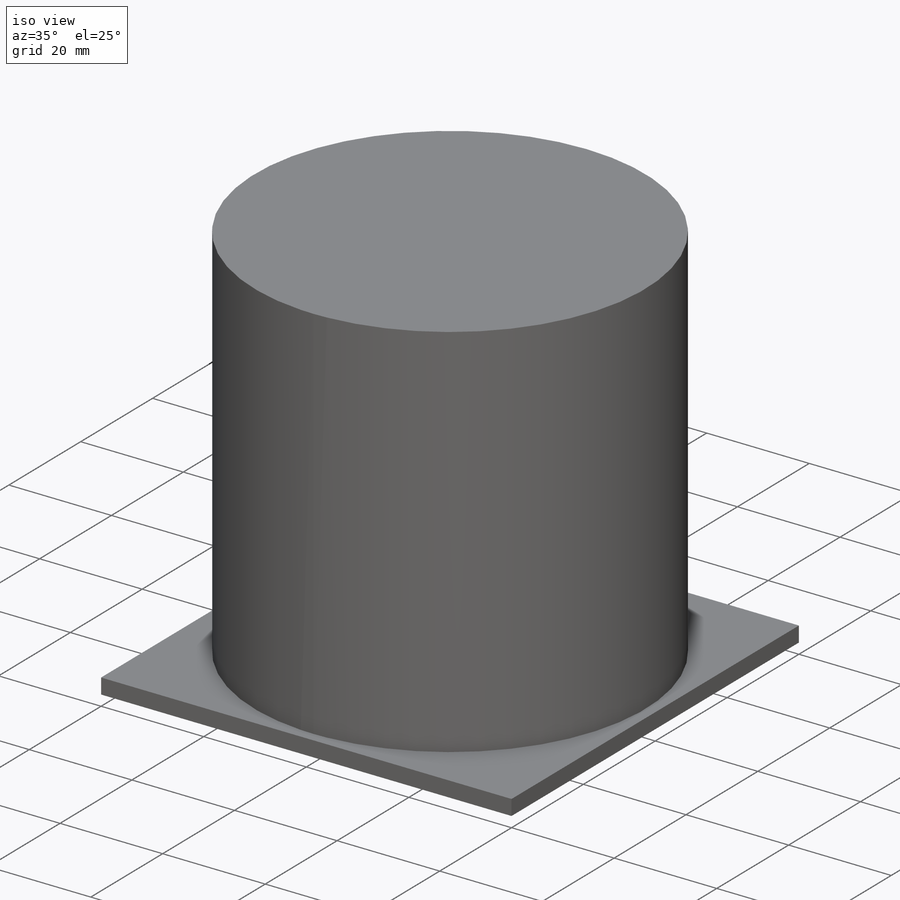
[diagram: iso view]
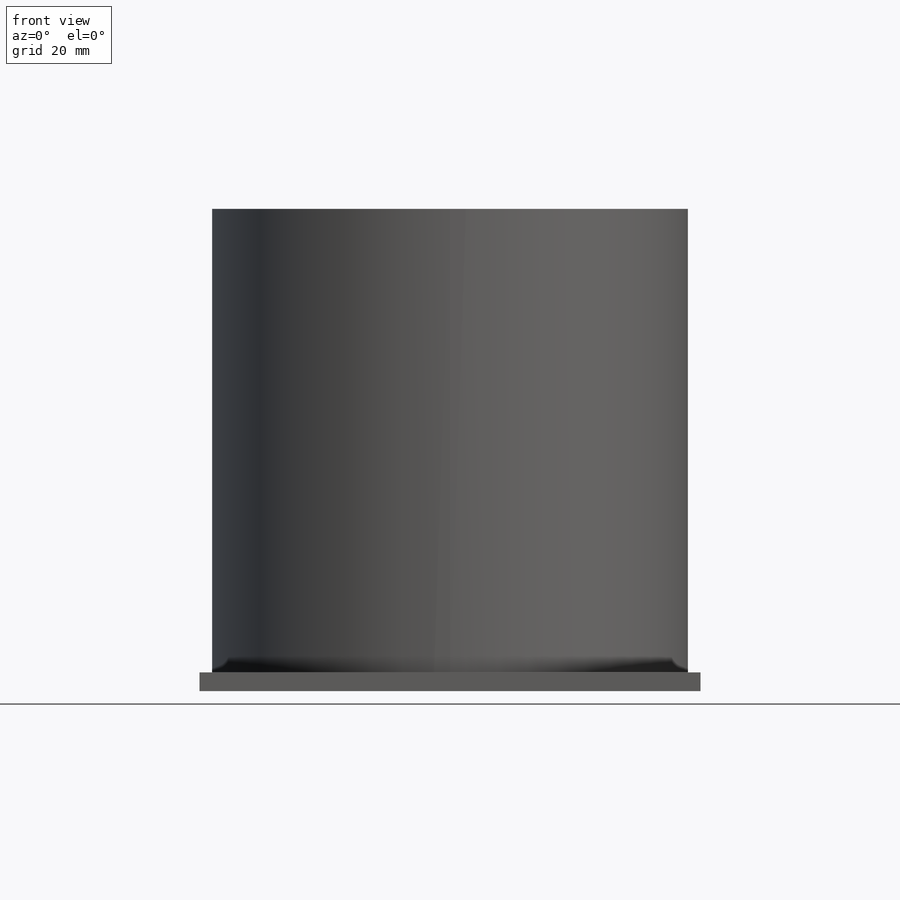
[diagram: front view]
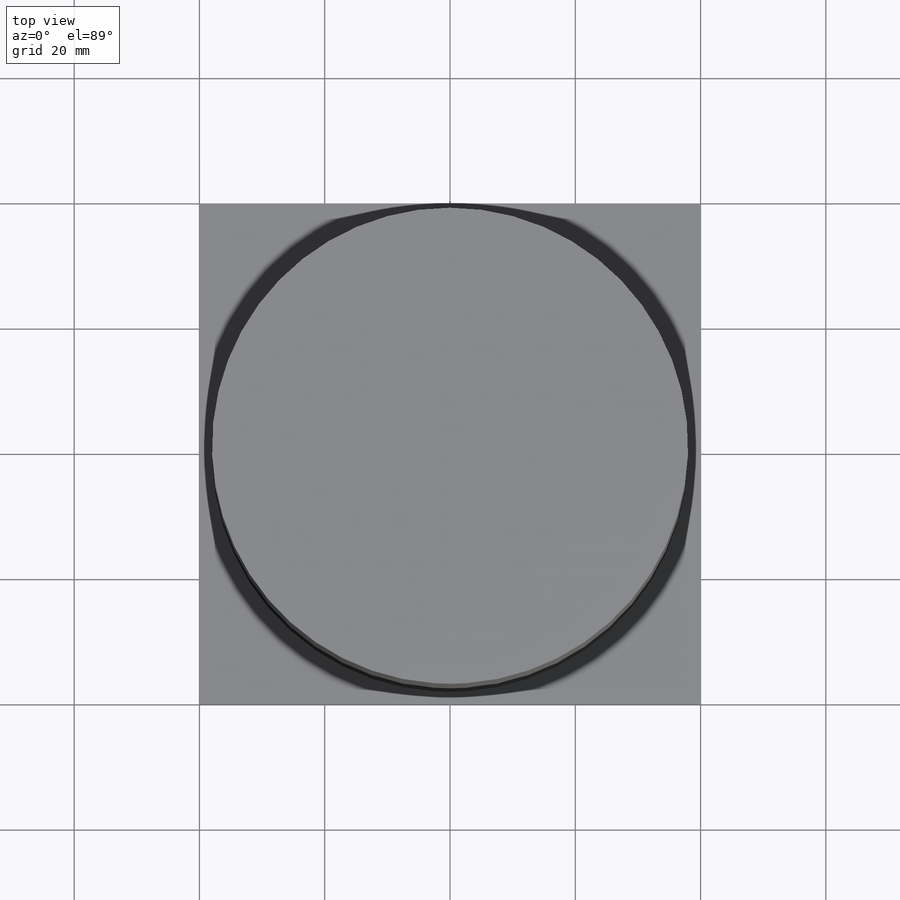
[diagram: top view]
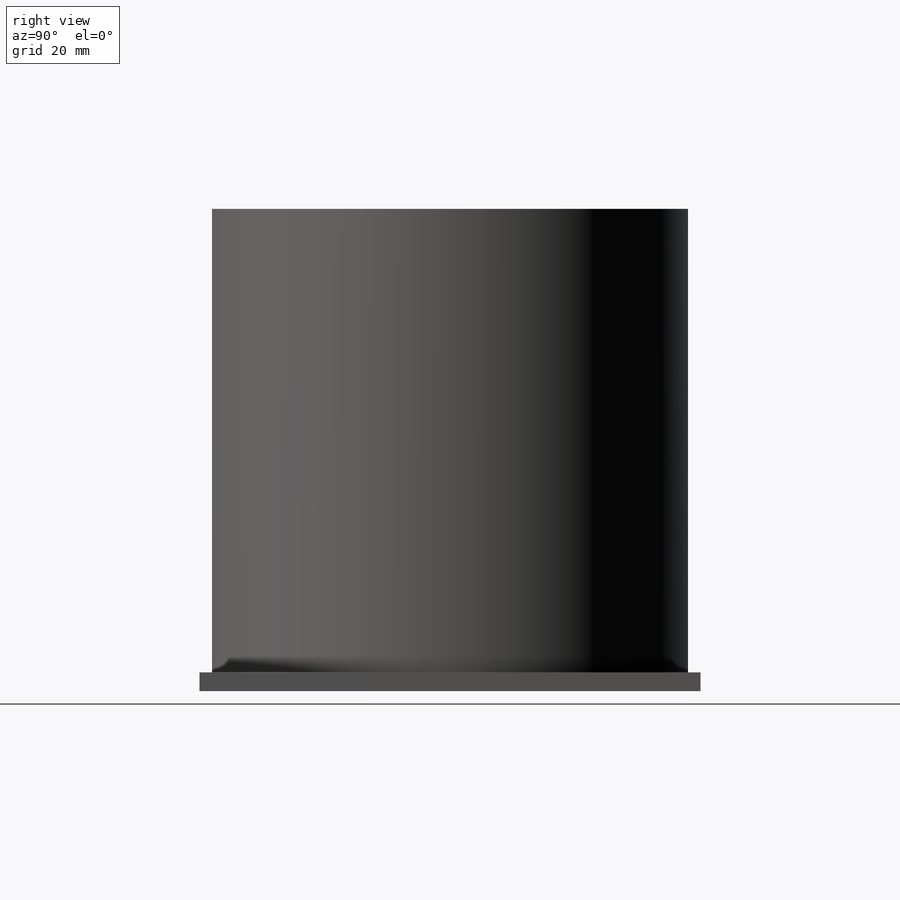
[diagram: right view]
SOLIDWORKS PART (.sldprt)
format: sldprt  version: not decoded by parser v0  size: 176,128 bytes
history: native  units: mm
features: sketch x3, material x1, extrude x1, revolve x1 (+11 scaffold rows collapsed)
feature tree (17):
  scaffold x11  (default folders/planes/origin — collapsed)
  material  "Material <not specified>"
  sketch  "Sketch1"  dims[c1.D1=80.0mm c1.D2=80.0mm c1.D3=80.0mm c2.D1=40.0mm c2.D2=80.0mm c2.D3=80.0mm]
  extrude  "Boss-Extrude1"  Depth=3mm
  sketch  "Sketch3"  dims[c1.D3=76.0mm c1.D1=40.0mm c1.D2=40.0mm c1.D4=~56.568542mm c1.D5=80.0mm c1.D6=80.0mm c2.D5=80.0mm c2.D1=40.0mm c2.D2=40.0mm c3.D1=74.0mm c3.D5=3.0mm c3.D6=1.0mm c3.D7=5.0mm]
  sketch  "Sketch7"  dims[c1.D1=~25.804767mm c2.D1=45.0deg c3.D1=3.0mm c3.D2=38.0mm c4.D2=45.0deg]
  revolve  "Revolve5"  Angle=360deg
decode coverage: 5 of 5 modeling features carry decoded parameters
note: ~ marks probable driven/reference dimensions
note: suppression state not decoded; provenance and decode notes live in map.json
